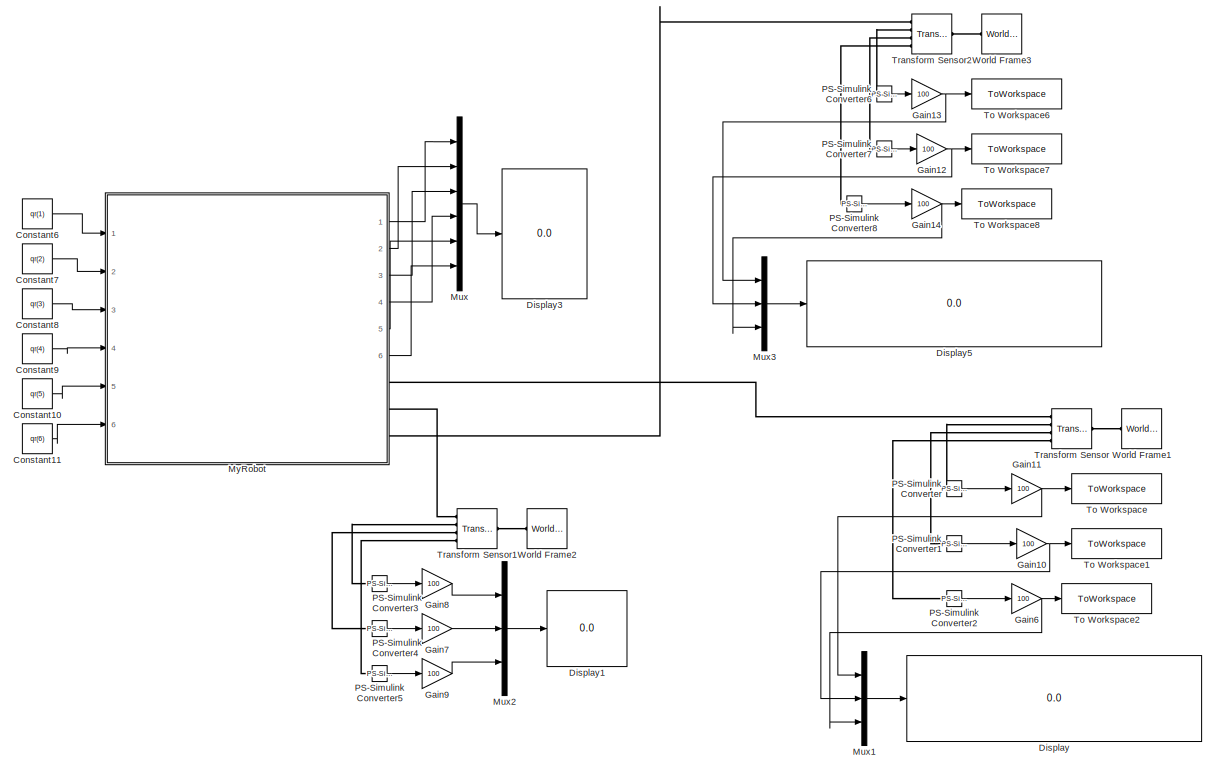
[diagram: root canvas - part 1/2, right side, full height]
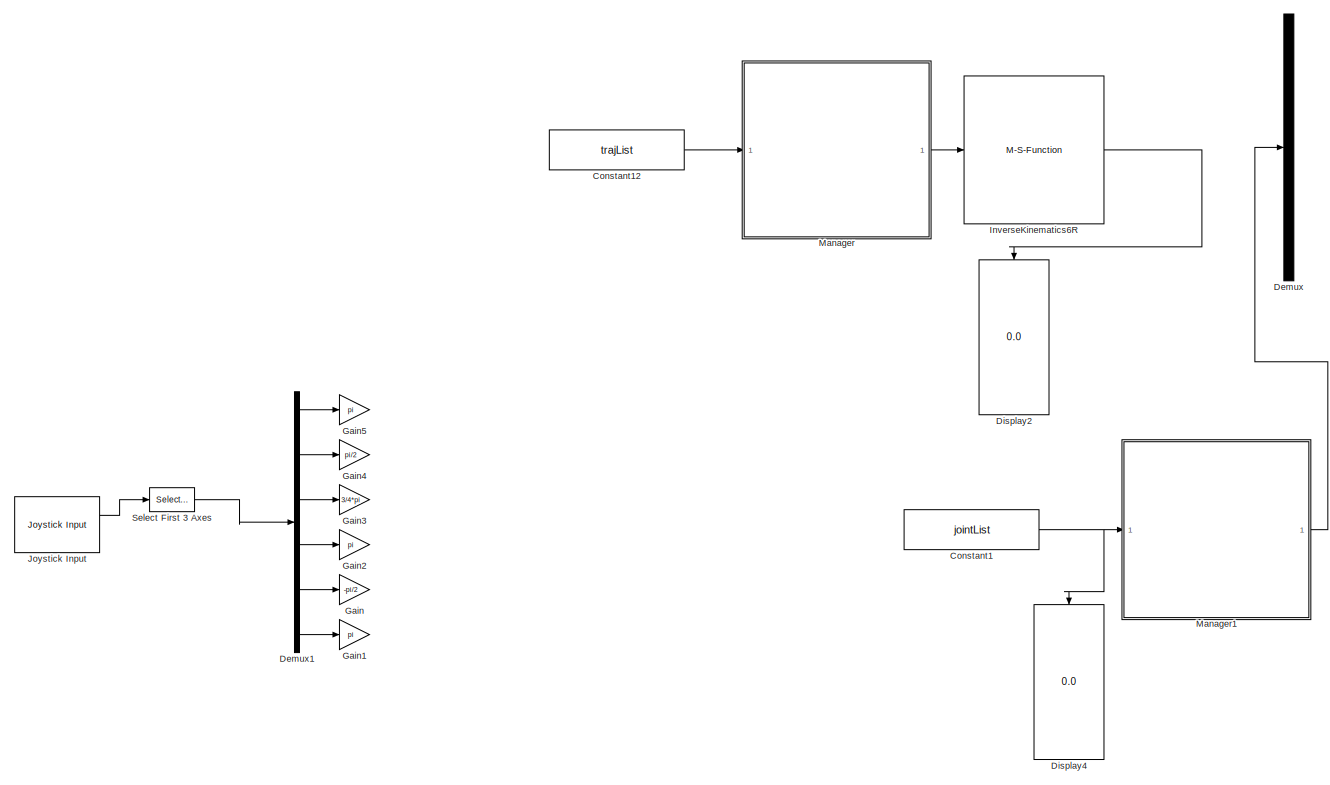
[diagram: root canvas - part 2/2, left side, full height]
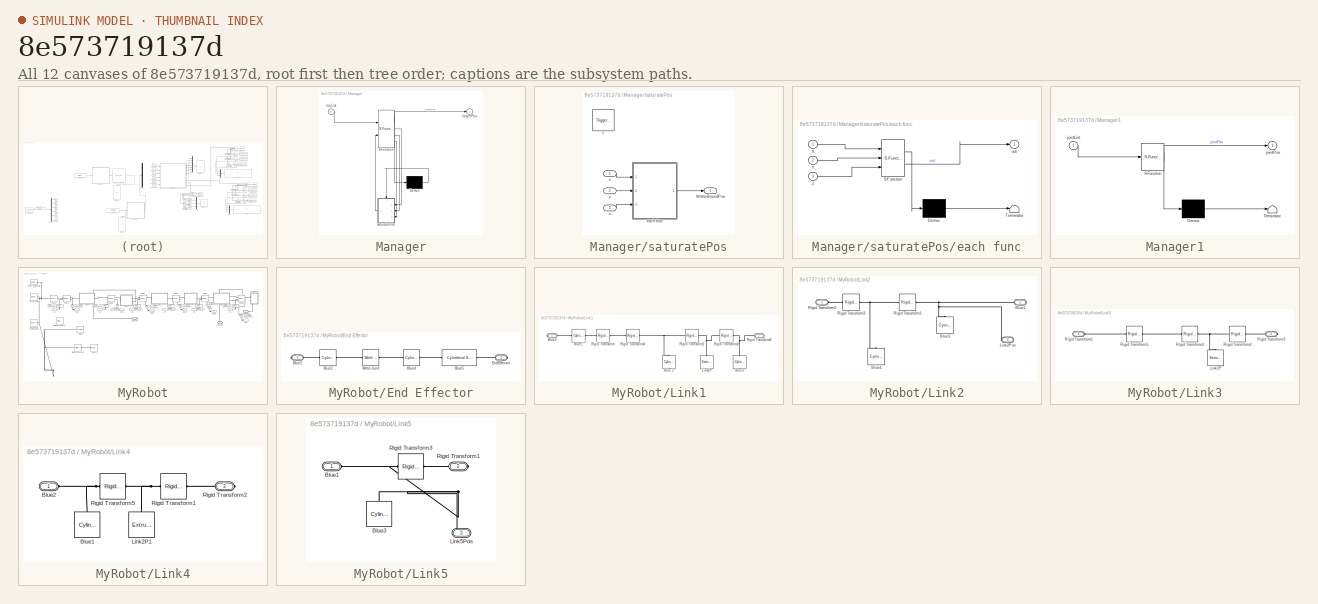
[diagram: thumbnail index - all 12 canvases of the model, root first then tree order]
MODEL slx_8e573719137d
KIND model
CONFIG AbsTol = auto
CONFIG EnableMultiTasking = on
CONFIG FixedStep = 0.1
CONFIG MaxStep = auto
CONFIG MinStep = auto
CONFIG RelTol = 1e-3
CONFIG SampleTimeConstraint = Unconstrained
CONFIG SolverName = FixedStepAuto
CONFIG StartTime = 0.0
CONFIG StopTime = 10
BLOCK [Constant] Constant1
  Commented = on
  Value = jointList
BLOCK [Constant] Constant10
  Value = qr(5)
BLOCK [Constant] Constant11
  Value = qr(6)
BLOCK [Constant] Constant12
  Commented = on
  Value = trajList
BLOCK [Constant] Constant6
  Value = qr(1)
BLOCK [Constant] Constant7
  Value = qr(2)
BLOCK [Constant] Constant8
  Value = qr(3)
BLOCK [Constant] Constant9
  Value = qr(4)
BLOCK [Demux] Demux
  Commented = on
  Outputs = 6
  Ports = [1, 6]
BLOCK [Demux] Demux1
  Commented = on
  Outputs = 6
  Ports = [1, 6]
BLOCK [Display] Display
  Decimation = 1
  Ports = [1]
BLOCK [Display] Display1
  Decimation = 1
  Ports = [1]
BLOCK [Display] Display2
  Commented = on
  Decimation = 1
  NameLocation = left
  Ports = [1]
BLOCK [Display] Display3
  Decimation = 1
  Ports = [1]
BLOCK [Display] Display4
  Commented = on
  Decimation = 1
  NameLocation = left
  Ports = [1]
BLOCK [Display] Display5
  Decimation = 1
  Ports = [1]
BLOCK [Gain] Gain
  Commented = on
  Gain = -pi/2
BLOCK [Gain] Gain1
  Commented = on
  Gain = pi
BLOCK [Gain] Gain10
  Gain = 100
BLOCK [Gain] Gain11
  Gain = 100
BLOCK [Gain] Gain12
  Gain = 100
BLOCK [Gain] Gain13
  Gain = 100
BLOCK [Gain] Gain14
  Gain = 100
BLOCK [Gain] Gain2
  Commented = on
  Gain = pi
BLOCK [Gain] Gain3
  Commented = on
  Gain = 3/4*pi
BLOCK [Gain] Gain4
  Commented = on
  Gain = pi/2
BLOCK [Gain] Gain5
  Commented = on
  Gain = pi
BLOCK [Gain] Gain6
  Gain = 100
BLOCK [Gain] Gain7
  Gain = 100
BLOCK [Gain] Gain8
  Gain = 100
BLOCK [Gain] Gain9
  Gain = 100
BLOCK [M-S-Function] InverseKinematics6R
  Commented = on
  FunctionName = inverse_kinematics_6R
  Ports = [1, 1]
BLOCK [Reference] Joystick Input  REF=vrlib/Joystick Input
  Commented = on
  Ports = [0, 2]
  SourceBlock = vrlib/Joystick Input
  SourceProductBaseCode = SL
  SourceType = Joystick Input
BLOCK [SubSystem] Manager
  Commented = on
  ErrorFcn = Stateflow.Translate.translate
  PermitHierarchicalResolution = ExplicitOnly
  Ports = [1, 1]
  RequestExecContextInheritance = off
  SFBlockType = Chart
  TreatAsAtomicUnit = on
BLOCK [Demux] Manager/ Demux 
  Outputs = 1
  Ports = [1, 1]
BLOCK [S-Function] Manager/ SFunction 
  EnableBusSupport = on
  FunctionName = sf_sfun
  PortCounts = [2 5]
  Ports = [2, 5]
  SFcnIsStateOwnerBlock = off
  SFunctionDeploymentMode = off
  Tag = Stateflow S-Function 3
BLOCK [SubSystem] Manager/saturatePos
  Ports = [3, 1, 0, 1]
  PreDeleteFcn = Stateflow.SLINSF.SimulinkMan.removePreDeleteFcn
  RequestExecContextInheritance = off
  UndoDeleteFcn = Stateflow.SLINSF.SimulinkMan.restorePreDeleteFcn
BLOCK [Outport] Manager/saturatePos/WithinBoundPos
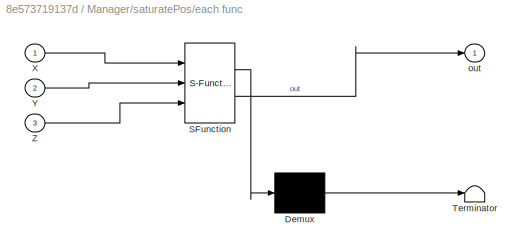
BLOCK [SubSystem] Manager/saturatePos/each func
  ErrorFcn = Stateflow.Translate.translate
  PermitHierarchicalResolution = ExplicitOnly
  Ports = [3, 1]
  RequestExecContextInheritance = off
  SFBlockType = MATLAB Function
  TreatAsAtomicUnit = on
BLOCK [Demux] Manager/saturatePos/each func/ Demux 
  Outputs = 1
  Ports = [1, 1]
BLOCK [S-Function] Manager/saturatePos/each func/ SFunction 
  EnableBusSupport = off
  FunctionName = sf_sfun
  PortCounts = [3 2]
  Ports = [3, 2]
  SFcnIsStateOwnerBlock = off
  SFunctionDeploymentMode = off
  Tag = Stateflow S-Function 4
BLOCK [Terminator] Manager/saturatePos/each func/ Terminator 
BLOCK [Inport] Manager/saturatePos/each func/X
BLOCK [Inport] Manager/saturatePos/each func/Y
  Port = 2
BLOCK [Inport] Manager/saturatePos/each func/Z
  Port = 3
BLOCK [Outport] Manager/saturatePos/each func/out
BLOCK [TriggerPort] Manager/saturatePos/f
  CopyFcn = Stateflow.SLINSF.SimulinkMan.removeBlockPreDeleteFcn
  Ports = []
  PreDeleteFcn = Stateflow.SLINSF.SimulinkMan.unsafePredeleteFcn
  StatesWhenEnabling = held
  TriggerType = function-call
  VariantControl = (inherit)
BLOCK [Inport] Manager/saturatePos/x
  OutDataTypeStr = double
  PortDimensions = 1
  SignalType = real
  VarSizeSig = No
BLOCK [Inport] Manager/saturatePos/y
  OutDataTypeStr = double
  Port = 2
  PortDimensions = 1
  SignalType = real
  VarSizeSig = No
BLOCK [Inport] Manager/saturatePos/z
  OutDataTypeStr = double
  Port = 3
  PortDimensions = 1
  SignalType = real
  VarSizeSig = No
BLOCK [Outport] Manager/targetPos
BLOCK [Inport] Manager/trajList
BLOCK [SubSystem] Manager1
  Commented = on
  ErrorFcn = Stateflow.Translate.translate
  PermitHierarchicalResolution = ExplicitOnly
  Ports = [1, 1]
  RequestExecContextInheritance = off
  SFBlockType = Chart
  TreatAsAtomicUnit = on
BLOCK [Demux] Manager1/ Demux 
  Outputs = 1
  Ports = [1, 1]
BLOCK [S-Function] Manager1/ SFunction 
  EnableBusSupport = on
  FunctionName = sf_sfun
  PortCounts = [1 2]
  Ports = [1, 2]
  SFcnIsStateOwnerBlock = off
  SFunctionDeploymentMode = off
  Tag = Stateflow S-Function 1
BLOCK [Terminator] Manager1/ Terminator 
BLOCK [Inport] Manager1/jointList
BLOCK [Outport] Manager1/jointPos
BLOCK [Mux] Mux
  DisplayOption = bar
  Inputs = 6
  Ports = [6, 1]
BLOCK [Mux] Mux1
  DisplayOption = bar
  Inputs = 3
  Ports = [3, 1]
BLOCK [Mux] Mux2
  DisplayOption = bar
  Inputs = 3
  Ports = [3, 1]
BLOCK [Mux] Mux3
  DisplayOption = bar
  Inputs = 3
  Ports = [3, 1]
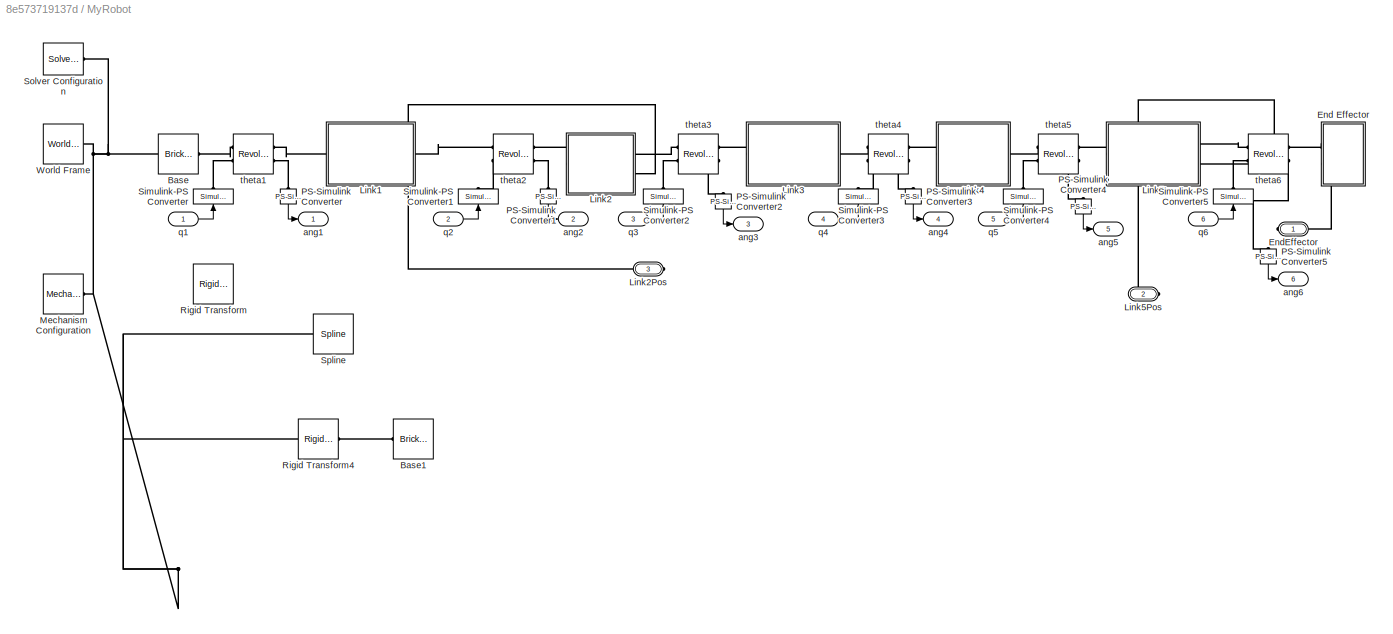
BLOCK [SubSystem] MyRobot
  Ports = [6, 6, 0, 0, 0, 0, 3]
  RequestExecContextInheritance = off
BLOCK [Reference] MyRobot/Base  REF=sm_lib/Body Elements/Brick Solid
  NameLocation = left
  Ports = [0, 0, 0, 0, 0, 1, 1]
  SourceBlock = sm_lib/Body Elements/Brick Solid
  SourceProductBaseCode = MS
  SourceType = Brick Solid
BLOCK [Reference] MyRobot/Base1  REF=sm_lib/Body Elements/Brick Solid
  NameLocation = left
  Ports = [0, 0, 0, 0, 0, 1]
  SourceBlock = sm_lib/Body Elements/Brick Solid
  SourceProductBaseCode = MS
  SourceType = Brick Solid
BLOCK [SubSystem] MyRobot/End Effector
  NameLocation = top
  Ports = [0, 0, 0, 0, 0, 0, 2]
  RequestExecContextInheritance = off
BLOCK [PMIOPort] MyRobot/End Effector/Blue1
  Side = Right
BLOCK [Reference] MyRobot/End Effector/Blue2  REF=sm_lib/Body Elements/Cylindrical Solid
  NameLocation = top
  Ports = [0, 0, 0, 0, 0, 1, 1]
  SourceBlock = sm_lib/Body Elements/Cylindrical Solid
  SourceProductBaseCode = MS
  SourceType = Cylindrical Solid
BLOCK [Reference] MyRobot/End Effector/Blue4  REF=sm_lib/Body Elements/Cylindrical Solid
  Ports = [0, 0, 0, 0, 0, 1, 1]
  SourceBlock = sm_lib/Body Elements/Cylindrical Solid
  SourceProductBaseCode = MS
  SourceType = Cylindrical Solid
BLOCK [Reference] MyRobot/End Effector/Blue5  REF=sm_lib/Body Elements/Cylindrical Solid
  Ports = [0, 0, 0, 0, 0, 1, 1]
  SourceBlock = sm_lib/Body Elements/Cylindrical Solid
  SourceProductBaseCode = MS
  SourceType = Cylindrical Solid
BLOCK [PMIOPort] MyRobot/End Effector/EndEffector
  NameLocation = top
  Port = 2
  Side = Right
BLOCK [Reference] MyRobot/End Effector/Weld Joint  REF=sm_lib/Joints/Weld Joint
  Ports = [0, 0, 0, 0, 0, 1, 1]
  SourceBlock = sm_lib/Joints/Weld Joint
  SourceProductBaseCode = MS
  SourceType = Weld Joint
BLOCK [PMIOPort] MyRobot/EndEffector
  Side = Right
BLOCK [SubSystem] MyRobot/Link1
  NameLocation = top
  Ports = [0, 0, 0, 0, 0, 1, 1]
  RequestExecContextInheritance = off
BLOCK [Reference] MyRobot/Link1/Blue 2  REF=sm_lib/Body Elements/Cylindrical Solid
  NameLocation = right
  Ports = [0, 0, 0, 0, 0, 0, 1]
  SourceBlock = sm_lib/Body Elements/Cylindrical Solid
  SourceProductBaseCode = MS
  SourceType = Cylindrical Solid
BLOCK [Reference] MyRobot/Link1/Blue1  REF=sm_lib/Body Elements/Cylindrical Solid
  NameLocation = top
  Ports = [0, 0, 0, 0, 0, 1, 1]
  SourceBlock = sm_lib/Body Elements/Cylindrical Solid
  SourceProductBaseCode = MS
  SourceType = Cylindrical Solid
BLOCK [PMIOPort] MyRobot/Link1/Blue2
  Side = Right
BLOCK [Reference] MyRobot/Link1/Blue3  REF=sm_lib/Body Elements/Cylindrical Solid
  NameLocation = right
  Ports = [0, 0, 0, 0, 0, 0, 1]
  SourceBlock = sm_lib/Body Elements/Cylindrical Solid
  SourceProductBaseCode = MS
  SourceType = Cylindrical Solid
BLOCK [Reference] MyRobot/Link1/Link2P  REF=sm_lib/Body Elements/Extruded Solid
  NameLocation = right
  Ports = [0, 0, 0, 0, 0, 0, 1]
  SourceBlock = sm_lib/Body Elements/Extruded Solid
  SourceProductBaseCode = MS
  SourceType = Extruded Solid
BLOCK [Reference] MyRobot/Link1/Rigid Transform  REF=sm_lib/Frames and
Transforms/Rigid
Transform
  Ports = [0, 0, 0, 0, 0, 1, 1]
  SourceBlock = sm_lib/Frames and\nTransforms/Rigid\nTransform
  SourceProductBaseCode = MS
  SourceType = Rigid\nTransform
BLOCK [Reference] MyRobot/Link1/Rigid Transform1  REF=sm_lib/Frames and
Transforms/Rigid
Transform
  Ports = [0, 0, 0, 0, 0, 1, 1]
  SourceBlock = sm_lib/Frames and\nTransforms/Rigid\nTransform
  SourceProductBaseCode = MS
  SourceType = Rigid\nTransform
BLOCK [Reference] MyRobot/Link1/Rigid Transform2  REF=sm_lib/Frames and
Transforms/Rigid
Transform
  Ports = [0, 0, 0, 0, 0, 1, 1]
  SourceBlock = sm_lib/Frames and\nTransforms/Rigid\nTransform
  SourceProductBaseCode = MS
  SourceType = Rigid\nTransform
BLOCK [PMIOPort] MyRobot/Link1/Rigid Transform3
  NameLocation = top
  Port = 2
  Side = Left
BLOCK [Reference] MyRobot/Link1/Rigid Transform4  REF=sm_lib/Frames and
Transforms/Rigid
Transform
  Ports = [0, 0, 0, 0, 0, 1, 1]
  SourceBlock = sm_lib/Frames and\nTransforms/Rigid\nTransform
  SourceProductBaseCode = MS
  SourceType = Rigid\nTransform
BLOCK [SubSystem] MyRobot/Link2
  Ports = [0, 0, 0, 0, 0, 1, 2]
  RequestExecContextInheritance = off
BLOCK [PMIOPort] MyRobot/Link2/Blue1
  Port = 2
  Side = Right
BLOCK [Reference] MyRobot/Link2/Blue3  REF=sm_lib/Body Elements/Cylindrical Solid
  NameLocation = right
  Ports = [0, 0, 0, 0, 0, 0, 1]
  SourceBlock = sm_lib/Body Elements/Cylindrical Solid
  SourceProductBaseCode = MS
  SourceType = Cylindrical Solid
BLOCK [Reference] MyRobot/Link2/Blue4  REF=sm_lib/Body Elements/Cylindrical Solid
  NameLocation = right
  Ports = [0, 0, 0, 0, 0, 0, 1]
  SourceBlock = sm_lib/Body Elements/Cylindrical Solid
  SourceProductBaseCode = MS
  SourceType = Cylindrical Solid
BLOCK [PMIOPort] MyRobot/Link2/Link2Pos
  NameLocation = top
  Port = 3
  Side = Right
BLOCK [Reference] MyRobot/Link2/Rigid Transform1  REF=sm_lib/Frames and
Transforms/Rigid
Transform
  Ports = [0, 0, 0, 0, 0, 1, 1]
  SourceBlock = sm_lib/Frames and\nTransforms/Rigid\nTransform
  SourceProductBaseCode = MS
  SourceType = Rigid\nTransform
BLOCK [PMIOPort] MyRobot/Link2/Rigid Transform2
  Side = Left
BLOCK [Reference] MyRobot/Link2/Rigid Transform3  REF=sm_lib/Frames and
Transforms/Rigid
Transform
  Ports = [0, 0, 0, 0, 0, 1, 1]
  SourceBlock = sm_lib/Frames and\nTransforms/Rigid\nTransform
  SourceProductBaseCode = MS
  SourceType = Rigid\nTransform
BLOCK [PMIOPort] MyRobot/Link2Pos
  NameLocation = top
  Port = 3
  Side = Right
BLOCK [SubSystem] MyRobot/Link3
  Ports = [0, 0, 0, 0, 0, 1, 1]
  RequestExecContextInheritance = off
BLOCK [Reference] MyRobot/Link3/Link2P  REF=sm_lib/Body Elements/Extruded Solid
  NameLocation = right
  Ports = [0, 0, 0, 0, 0, 0, 1]
  SourceBlock = sm_lib/Body Elements/Extruded Solid
  SourceProductBaseCode = MS
  SourceType = Extruded Solid
BLOCK [PMIOPort] MyRobot/Link3/Rigid Transform1
  Side = Left
BLOCK [Reference] MyRobot/Link3/Rigid Transform2  REF=sm_lib/Frames and
Transforms/Rigid
Transform
  Ports = [0, 0, 0, 0, 0, 1, 1]
  SourceBlock = sm_lib/Frames and\nTransforms/Rigid\nTransform
  SourceProductBaseCode = MS
  SourceType = Rigid\nTransform
BLOCK [PMIOPort] MyRobot/Link3/Rigid Transform3
  Port = 2
  Side = Right
BLOCK [Reference] MyRobot/Link3/Rigid Transform4  REF=sm_lib/Frames and
Transforms/Rigid
Transform
  Ports = [0, 0, 0, 0, 0, 1, 1]
  SourceBlock = sm_lib/Frames and\nTransforms/Rigid\nTransform
  SourceProductBaseCode = MS
  SourceType = Rigid\nTransform
BLOCK [Reference] MyRobot/Link3/Rigid Transform5  REF=sm_lib/Frames and
Transforms/Rigid
Transform
  Ports = [0, 0, 0, 0, 0, 1, 1]
  SourceBlock = sm_lib/Frames and\nTransforms/Rigid\nTransform
  SourceProductBaseCode = MS
  SourceType = Rigid\nTransform
BLOCK [SubSystem] MyRobot/Link4
  Ports = [0, 0, 0, 0, 0, 1, 1]
  RequestExecContextInheritance = off
BLOCK [Reference] MyRobot/Link4/Blue1  REF=sm_lib/Body Elements/Cylindrical Solid
  NameLocation = right
  Ports = [0, 0, 0, 0, 0, 0, 1]
  SourceBlock = sm_lib/Body Elements/Cylindrical Solid
  SourceProductBaseCode = MS
  SourceType = Cylindrical Solid
BLOCK [PMIOPort] MyRobot/Link4/Blue2
  Side = Left
BLOCK [Reference] MyRobot/Link4/Link2P1  REF=sm_lib/Body Elements/Extruded Solid
  NameLocation = right
  Ports = [0, 0, 0, 0, 0, 0, 1]
  SourceBlock = sm_lib/Body Elements/Extruded Solid
  SourceProductBaseCode = MS
  SourceType = Extruded Solid
BLOCK [Reference] MyRobot/Link4/Rigid Transform1  REF=sm_lib/Frames and
Transforms/Rigid
Transform
  Ports = [0, 0, 0, 0, 0, 1, 1]
  SourceBlock = sm_lib/Frames and\nTransforms/Rigid\nTransform
  SourceProductBaseCode = MS
  SourceType = Rigid\nTransform
BLOCK [PMIOPort] MyRobot/Link4/Rigid Transform2
  Port = 2
  Side = Right
BLOCK [Reference] MyRobot/Link4/Rigid Transform5  REF=sm_lib/Frames and
Transforms/Rigid
Transform
  Ports = [0, 0, 0, 0, 0, 1, 1]
  SourceBlock = sm_lib/Frames and\nTransforms/Rigid\nTransform
  SourceProductBaseCode = MS
  SourceType = Rigid\nTransform
BLOCK [SubSystem] MyRobot/Link5
  Ports = [0, 0, 0, 0, 0, 1, 2]
  RequestExecContextInheritance = off
BLOCK [PMIOPort] MyRobot/Link5/Blue1
  Side = Left
BLOCK [Reference] MyRobot/Link5/Blue3  REF=sm_lib/Body Elements/Cylindrical Solid
  NameLocation = right
  Ports = [0, 0, 0, 0, 0, 0, 1]
  SourceBlock = sm_lib/Body Elements/Cylindrical Solid
  SourceProductBaseCode = MS
  SourceType = Cylindrical Solid
BLOCK [PMIOPort] MyRobot/Link5/Link5Pos
  NameLocation = top
  Port = 3
  Side = Right
BLOCK [PMIOPort] MyRobot/Link5/Rigid Transform1
  Port = 2
  Side = Right
BLOCK [Reference] MyRobot/Link5/Rigid Transform3  REF=sm_lib/Frames and
Transforms/Rigid
Transform
  Ports = [0, 0, 0, 0, 0, 1, 1]
  SourceBlock = sm_lib/Frames and\nTransforms/Rigid\nTransform
  SourceProductBaseCode = MS
  SourceType = Rigid\nTransform
BLOCK [PMIOPort] MyRobot/Link5Pos
  NameLocation = top
  Port = 2
  Side = Right
BLOCK [Reference] MyRobot/Mechanism Configuration  REF=sm_lib/Utilities/Mechanism
Configuration
  Ports = [0, 0, 0, 0, 0, 0, 1]
  SourceBlock = sm_lib/Utilities/Mechanism\nConfiguration
  SourceProductBaseCode = MS
  SourceType = Mechanism\nConfiguration
BLOCK [Reference] MyRobot/PS-Simulink Converter  REF=nesl_utility/PS-Simulink
Converter
  NameLocation = left
  Ports = [0, 1, 0, 0, 0, 1]
  SourceBlock = nesl_utility/PS-Simulink\nConverter
  SourceProductBaseCode = PW,SS
  SourceType = PS-Simulink\nConverter
BLOCK [Reference] MyRobot/PS-Simulink Converter1  REF=nesl_utility/PS-Simulink
Converter
  NameLocation = left
  Ports = [0, 1, 0, 0, 0, 1]
  SourceBlock = nesl_utility/PS-Simulink\nConverter
  SourceProductBaseCode = PW,SS
  SourceType = PS-Simulink\nConverter
BLOCK [Reference] MyRobot/PS-Simulink Converter2  REF=nesl_utility/PS-Simulink
Converter
  NameLocation = left
  Ports = [0, 1, 0, 0, 0, 1]
  SourceBlock = nesl_utility/PS-Simulink\nConverter
  SourceProductBaseCode = PW,SS
  SourceType = PS-Simulink\nConverter
BLOCK [Reference] MyRobot/PS-Simulink Converter3  REF=nesl_utility/PS-Simulink
Converter
  NameLocation = left
  Ports = [0, 1, 0, 0, 0, 1]
  SourceBlock = nesl_utility/PS-Simulink\nConverter
  SourceProductBaseCode = PW,SS
  SourceType = PS-Simulink\nConverter
BLOCK [Reference] MyRobot/PS-Simulink Converter4  REF=nesl_utility/PS-Simulink
Converter
  NameLocation = left
  Ports = [0, 1, 0, 0, 0, 1]
  SourceBlock = nesl_utility/PS-Simulink\nConverter
  SourceProductBaseCode = PW,SS
  SourceType = PS-Simulink\nConverter
BLOCK [Reference] MyRobot/PS-Simulink Converter5  REF=nesl_utility/PS-Simulink
Converter
  NameLocation = left
  Ports = [0, 1, 0, 0, 0, 1]
  SourceBlock = nesl_utility/PS-Simulink\nConverter
  SourceProductBaseCode = PW,SS
  SourceType = PS-Simulink\nConverter
BLOCK [Reference] MyRobot/Rigid Transform  REF=sm_lib/Frames and
Transforms/Rigid
Transform
  Commented = on
  Ports = [0, 0, 0, 0, 0, 1, 1]
  SourceBlock = sm_lib/Frames and\nTransforms/Rigid\nTransform
  SourceProductBaseCode = MS
  SourceType = Rigid\nTransform
BLOCK [Reference] MyRobot/Rigid Transform4  REF=sm_lib/Frames and
Transforms/Rigid
Transform
  Ports = [0, 0, 0, 0, 0, 1, 1]
  SourceBlock = sm_lib/Frames and\nTransforms/Rigid\nTransform
  SourceProductBaseCode = MS
  SourceType = Rigid\nTransform
BLOCK [Reference] MyRobot/Simulink-PS Converter  REF=nesl_utility/Simulink-PS
Converter
  NameLocation = right
  Ports = [1, 0, 0, 0, 0, 0, 1]
  SourceBlock = nesl_utility/Simulink-PS\nConverter
  SourceProductBaseCode = PW,SS
  SourceType = Simulink-PS\nConverter
BLOCK [Reference] MyRobot/Simulink-PS Converter1  REF=nesl_utility/Simulink-PS
Converter
  NameLocation = right
  Ports = [1, 0, 0, 0, 0, 0, 1]
  SourceBlock = nesl_utility/Simulink-PS\nConverter
  SourceProductBaseCode = PW,SS
  SourceType = Simulink-PS\nConverter
BLOCK [Reference] MyRobot/Simulink-PS Converter2  REF=nesl_utility/Simulink-PS
Converter
  NameLocation = right
  Ports = [1, 0, 0, 0, 0, 0, 1]
  SourceBlock = nesl_utility/Simulink-PS\nConverter
  SourceProductBaseCode = PW,SS
  SourceType = Simulink-PS\nConverter
BLOCK [Reference] MyRobot/Simulink-PS Converter3  REF=nesl_utility/Simulink-PS
Converter
  NameLocation = right
  Ports = [1, 0, 0, 0, 0, 0, 1]
  SourceBlock = nesl_utility/Simulink-PS\nConverter
  SourceProductBaseCode = PW,SS
  SourceType = Simulink-PS\nConverter
BLOCK [Reference] MyRobot/Simulink-PS Converter4  REF=nesl_utility/Simulink-PS
Converter
  NameLocation = right
  Ports = [1, 0, 0, 0, 0, 0, 1]
  SourceBlock = nesl_utility/Simulink-PS\nConverter
  SourceProductBaseCode = PW,SS
  SourceType = Simulink-PS\nConverter
BLOCK [Reference] MyRobot/Simulink-PS Converter5  REF=nesl_utility/Simulink-PS
Converter
  NameLocation = right
  Ports = [1, 0, 0, 0, 0, 0, 1]
  SourceBlock = nesl_utility/Simulink-PS\nConverter
  SourceProductBaseCode = PW,SS
  SourceType = Simulink-PS\nConverter
BLOCK [Reference] MyRobot/Solver Configuration  REF=nesl_utility/Solver
Configuration
  Ports = [0, 0, 0, 0, 0, 0, 1]
  SourceBlock = nesl_utility/Solver\nConfiguration
  SourceProductBaseCode = PW,SS
  SourceType = Solver\nConfiguration
BLOCK [Reference] MyRobot/Spline  REF=sm_lib/Curves and Surfaces/Spline
  Ports = [0, 0, 0, 0, 0, 1, 1]
  SourceBlock = sm_lib/Curves and Surfaces/Spline
  SourceProductBaseCode = MS
  SourceType = Spline
BLOCK [Reference] MyRobot/World Frame  REF=sm_lib/Frames and
Transforms/World Frame
  Ports = [0, 0, 0, 0, 0, 0, 1]
  SourceBlock = sm_lib/Frames and\nTransforms/World Frame
  SourceProductBaseCode = MS
  SourceType = World Frame
BLOCK [Outport] MyRobot/ang1
BLOCK [Outport] MyRobot/ang2
  Port = 2
BLOCK [Outport] MyRobot/ang3
  Port = 3
BLOCK [Outport] MyRobot/ang4
  Port = 4
BLOCK [Outport] MyRobot/ang5
  Port = 5
BLOCK [Outport] MyRobot/ang6
  Port = 6
BLOCK [Inport] MyRobot/q1
BLOCK [Inport] MyRobot/q2
  Port = 2
BLOCK [Inport] MyRobot/q3
  Port = 3
BLOCK [Inport] MyRobot/q4
  Port = 4
BLOCK [Inport] MyRobot/q5
  Port = 5
BLOCK [Inport] MyRobot/q6
  Port = 6
BLOCK [Reference] MyRobot/theta1  REF=sm_lib/Joints/Revolute Joint
  Ports = [0, 0, 0, 0, 0, 2, 2]
  SourceBlock = sm_lib/Joints/Revolute Joint
  SourceProductBaseCode = MS
  SourceType = Revolute Joint
BLOCK [Reference] MyRobot/theta2  REF=sm_lib/Joints/Revolute Joint
  Ports = [0, 0, 0, 0, 0, 2, 2]
  SourceBlock = sm_lib/Joints/Revolute Joint
  SourceProductBaseCode = MS
  SourceType = Revolute Joint
BLOCK [Reference] MyRobot/theta3  REF=sm_lib/Joints/Revolute Joint
  Ports = [0, 0, 0, 0, 0, 2, 2]
  SourceBlock = sm_lib/Joints/Revolute Joint
  SourceProductBaseCode = MS
  SourceType = Revolute Joint
BLOCK [Reference] MyRobot/theta4  REF=sm_lib/Joints/Revolute Joint
  Ports = [0, 0, 0, 0, 0, 2, 2]
  SourceBlock = sm_lib/Joints/Revolute Joint
  SourceProductBaseCode = MS
  SourceType = Revolute Joint
BLOCK [Reference] MyRobot/theta5  REF=sm_lib/Joints/Revolute Joint
  Ports = [0, 0, 0, 0, 0, 2, 2]
  SourceBlock = sm_lib/Joints/Revolute Joint
  SourceProductBaseCode = MS
  SourceType = Revolute Joint
BLOCK [Reference] MyRobot/theta6  REF=sm_lib/Joints/Revolute Joint
  Ports = [0, 0, 0, 0, 0, 2, 2]
  SourceBlock = sm_lib/Joints/Revolute Joint
  SourceProductBaseCode = MS
  SourceType = Revolute Joint
BLOCK [Reference] PS-Simulink Converter  REF=nesl_utility/PS-Simulink
Converter
  Ports = [0, 1, 0, 0, 0, 1]
  SourceBlock = nesl_utility/PS-Simulink\nConverter
  SourceProductBaseCode = PW,SS
  SourceType = PS-Simulink\nConverter
BLOCK [Reference] PS-Simulink Converter1  REF=nesl_utility/PS-Simulink
Converter
  Ports = [0, 1, 0, 0, 0, 1]
  SourceBlock = nesl_utility/PS-Simulink\nConverter
  SourceProductBaseCode = PW,SS
  SourceType = PS-Simulink\nConverter
BLOCK [Reference] PS-Simulink Converter2  REF=nesl_utility/PS-Simulink
Converter
  Ports = [0, 1, 0, 0, 0, 1]
  SourceBlock = nesl_utility/PS-Simulink\nConverter
  SourceProductBaseCode = PW,SS
  SourceType = PS-Simulink\nConverter
BLOCK [Reference] PS-Simulink Converter3  REF=nesl_utility/PS-Simulink
Converter
  Ports = [0, 1, 0, 0, 0, 1]
  SourceBlock = nesl_utility/PS-Simulink\nConverter
  SourceProductBaseCode = PW,SS
  SourceType = PS-Simulink\nConverter
BLOCK [Reference] PS-Simulink Converter4  REF=nesl_utility/PS-Simulink
Converter
  Ports = [0, 1, 0, 0, 0, 1]
  SourceBlock = nesl_utility/PS-Simulink\nConverter
  SourceProductBaseCode = PW,SS
  SourceType = PS-Simulink\nConverter
BLOCK [Reference] PS-Simulink Converter5  REF=nesl_utility/PS-Simulink
Converter
  Ports = [0, 1, 0, 0, 0, 1]
  SourceBlock = nesl_utility/PS-Simulink\nConverter
  SourceProductBaseCode = PW,SS
  SourceType = PS-Simulink\nConverter
BLOCK [Reference] PS-Simulink Converter6  REF=nesl_utility/PS-Simulink
Converter
  Ports = [0, 1, 0, 0, 0, 1]
  SourceBlock = nesl_utility/PS-Simulink\nConverter
  SourceProductBaseCode = PW,SS
  SourceType = PS-Simulink\nConverter
BLOCK [Reference] PS-Simulink Converter7  REF=nesl_utility/PS-Simulink
Converter
  Ports = [0, 1, 0, 0, 0, 1]
  SourceBlock = nesl_utility/PS-Simulink\nConverter
  SourceProductBaseCode = PW,SS
  SourceType = PS-Simulink\nConverter
BLOCK [Reference] PS-Simulink Converter8  REF=nesl_utility/PS-Simulink
Converter
  Ports = [0, 1, 0, 0, 0, 1]
  SourceBlock = nesl_utility/PS-Simulink\nConverter
  SourceProductBaseCode = PW,SS
  SourceType = PS-Simulink\nConverter
BLOCK [Selector] Select First 3 Axes
  AttributesFormatString = (Joystick - dependent)
  Commented = on
  IndexOptions = Index vector (dialog)
  Indices = [1 2 3 4 5 6]
  InputPortWidth = 6
  OutputSizes = 1
  Ports = [1, 1]
BLOCK [ToWorkspace] To Workspace
  FixptAsFi = on
  MaxDataPoints = inf
  Ports = [1]
  SampleTime = -1
  SaveFormat = Timeseries
  VariableName = x_point
BLOCK [ToWorkspace] To Workspace1
  FixptAsFi = on
  MaxDataPoints = inf
  Ports = [1]
  SampleTime = -1
  SaveFormat = Timeseries
  VariableName = y_point
BLOCK [ToWorkspace] To Workspace2
  FixptAsFi = on
  MaxDataPoints = inf
  Ports = [1]
  SampleTime = -1
  SaveFormat = Timeseries
  VariableName = z_point
BLOCK [ToWorkspace] To Workspace6
  FixptAsFi = on
  MaxDataPoints = inf
  Ports = [1]
  SampleTime = -1
  SaveFormat = Timeseries
  VariableName = x_point2
BLOCK [ToWorkspace] To Workspace7
  FixptAsFi = on
  MaxDataPoints = inf
  Ports = [1]
  SampleTime = -1
  SaveFormat = Timeseries
  VariableName = y_point2
BLOCK [ToWorkspace] To Workspace8
  FixptAsFi = on
  MaxDataPoints = inf
  Ports = [1]
  SampleTime = -1
  SaveFormat = Timeseries
  VariableName = z_point2
BLOCK [Reference] Transform Sensor  REF=sm_lib/Frames and
Transforms/Transform
Sensor
  NameLocation = top
  Ports = [0, 0, 0, 0, 0, 1, 4]
  SourceBlock = sm_lib/Frames and\nTransforms/Transform\nSensor
  SourceProductBaseCode = MS
  SourceType = Transform\nSensor
BLOCK [Reference] Transform Sensor1  REF=sm_lib/Frames and
Transforms/Transform
Sensor
  NameLocation = top
  Ports = [0, 0, 0, 0, 0, 1, 4]
  SourceBlock = sm_lib/Frames and\nTransforms/Transform\nSensor
  SourceProductBaseCode = MS
  SourceType = Transform\nSensor
BLOCK [Reference] Transform Sensor2  REF=sm_lib/Frames and
Transforms/Transform
Sensor
  NameLocation = top
  Ports = [0, 0, 0, 0, 0, 1, 4]
  SourceBlock = sm_lib/Frames and\nTransforms/Transform\nSensor
  SourceProductBaseCode = MS
  SourceType = Transform\nSensor
BLOCK [Reference] World Frame1  REF=sm_lib/Frames and
Transforms/World Frame
  NameLocation = top
  Ports = [0, 0, 0, 0, 0, 0, 1]
  SourceBlock = sm_lib/Frames and\nTransforms/World Frame
  SourceProductBaseCode = MS
  SourceType = World Frame
BLOCK [Reference] World Frame2  REF=sm_lib/Frames and
Transforms/World Frame
  NameLocation = top
  Ports = [0, 0, 0, 0, 0, 0, 1]
  SourceBlock = sm_lib/Frames and\nTransforms/World Frame
  SourceProductBaseCode = MS
  SourceType = World Frame
BLOCK [Reference] World Frame3  REF=sm_lib/Frames and
Transforms/World Frame
  NameLocation = top
  Ports = [0, 0, 0, 0, 0, 0, 1]
  SourceBlock = sm_lib/Frames and\nTransforms/World Frame
  SourceProductBaseCode = MS
  SourceType = World Frame
LINE Constant10:1 -> MyRobot:5
LINE Constant11:1 -> MyRobot:6
LINE Constant12:1 -> Manager:1
NET Constant1:1 -> Display4:1, Manager1:1
LINE Constant6:1 -> MyRobot:1
LINE Constant7:1 -> MyRobot:2
LINE Constant8:1 -> MyRobot:3
LINE Constant9:1 -> MyRobot:4
LINE Demux1:1 -> Gain5:1
LINE Demux1:2 -> Gain4:1
LINE Demux1:3 -> Gain3:1
LINE Demux1:4 -> Gain2:1
LINE Demux1:5 -> Gain:1
LINE Demux1:6 -> Gain1:1
NET Gain10:1 -> Mux1:2, To Workspace1:1
NET Gain11:1 -> Mux1:1, To Workspace:1
NET Gain12:1 -> Mux3:2, To Workspace7:1
NET Gain13:1 -> Mux3:1, To Workspace6:1
NET Gain14:1 -> Mux3:3, To Workspace8:1
NET Gain6:1 -> Mux1:3, To Workspace2:1
LINE Gain7:1 -> Mux2:2
LINE Gain8:1 -> Mux2:1
LINE Gain9:1 -> Mux2:3
LINE InverseKinematics6R:1 -> Display2:1
LINE Joystick Input:1 -> Select First 3 Axes:1
LINE Manager1:1 -> Demux:1
LINE Manager:1 -> InverseKinematics6R:1
LINE Mux1:1 -> Display:1
LINE Mux2:1 -> Display1:1
LINE Mux3:1 -> Display5:1
LINE Mux:1 -> Display3:1
LINE MyRobot/PS-Simulink Converter1:1 -> MyRobot/ang2:1
LINE MyRobot/PS-Simulink Converter2:1 -> MyRobot/ang3:1
LINE MyRobot/PS-Simulink Converter3:1 -> MyRobot/ang4:1
LINE MyRobot/PS-Simulink Converter4:1 -> MyRobot/ang5:1
LINE MyRobot/PS-Simulink Converter5:1 -> MyRobot/ang6:1
LINE MyRobot/PS-Simulink Converter:1 -> MyRobot/ang1:1
LINE MyRobot/q1:1 -> MyRobot/Simulink-PS Converter:1
LINE MyRobot/q2:1 -> MyRobot/Simulink-PS Converter1:1
LINE MyRobot/q3:1 -> MyRobot/Simulink-PS Converter2:1
LINE MyRobot/q4:1 -> MyRobot/Simulink-PS Converter3:1
LINE MyRobot/q5:1 -> MyRobot/Simulink-PS Converter4:1
LINE MyRobot/q6:1 -> MyRobot/Simulink-PS Converter5:1
LINE MyRobot:1 -> Mux:1
LINE MyRobot:2 -> Mux:2
LINE MyRobot:3 -> Mux:3
LINE MyRobot:4 -> Mux:4
LINE MyRobot:5 -> Mux:5
LINE MyRobot:6 -> Mux:6
LINE PS-Simulink Converter1:1 -> Gain10:1
LINE PS-Simulink Converter2:1 -> Gain6:1
LINE PS-Simulink Converter3:1 -> Gain8:1
LINE PS-Simulink Converter4:1 -> Gain7:1
LINE PS-Simulink Converter5:1 -> Gain9:1
LINE PS-Simulink Converter6:1 -> Gain13:1
LINE PS-Simulink Converter7:1 -> Gain12:1
LINE PS-Simulink Converter8:1 -> Gain14:1
LINE PS-Simulink Converter:1 -> Gain11:1
LINE Select First 3 Axes:1 -> Demux1:1
PLINE MyRobot/Base1:LConn1 -- MyRobot/Rigid Transform4:RConn1
PNET net1: MyRobot/Base:LConn1 -- MyRobot/Mechanism Configuration:RConn1 -- MyRobot/Rigid Transform4:LConn1 -- MyRobot/Solver Configuration:RConn1 -- MyRobot/Spline:LConn1 -- MyRobot/World Frame:RConn1
PLINE MyRobot/Base:RConn1 -- MyRobot/theta1:LConn1
PLINE MyRobot/End Effector/Blue1:RConn1 -- MyRobot/End Effector/Blue2:RConn1
PLINE MyRobot/End Effector/Blue2:LConn1 -- MyRobot/End Effector/Weld Joint:LConn1
PLINE MyRobot/End Effector/Blue4:LConn1 -- MyRobot/End Effector/Weld Joint:RConn1
PLINE MyRobot/End Effector/Blue4:RConn1 -- MyRobot/End Effector/Blue5:LConn1
PLINE MyRobot/End Effector/Blue5:RConn1 -- MyRobot/End Effector/EndEffector:RConn1
PLINE MyRobot/End Effector:RConn1 -- MyRobot/theta6:RConn1
PLINE MyRobot/End Effector:RConn2 -- MyRobot/EndEffector:RConn1
PNET net2: MyRobot/Link1/Blue 2:RConn1 -- MyRobot/Link1/Rigid Transform1:LConn1 -- MyRobot/Link1/Rigid Transform4:RConn1
PLINE MyRobot/Link1/Blue1:LConn1 -- MyRobot/Link1/Rigid Transform:LConn1
PLINE MyRobot/Link1/Blue1:RConn1 -- MyRobot/Link1/Blue2:RConn1
PNET net3: MyRobot/Link1/Blue3:RConn1 -- MyRobot/Link1/Rigid Transform2:RConn1 -- MyRobot/Link1/Rigid Transform3:RConn1
PNET net4: MyRobot/Link1/Link2P:RConn1 -- MyRobot/Link1/Rigid Transform1:RConn1 -- MyRobot/Link1/Rigid Transform2:LConn1
PLINE MyRobot/Link1/Rigid Transform4:LConn1 -- MyRobot/Link1/Rigid Transform:RConn1
PLINE MyRobot/Link1:LConn1 -- MyRobot/theta2:LConn1
PLINE MyRobot/Link1:RConn1 -- MyRobot/theta1:RConn1
PNET net5: MyRobot/Link2/Blue1:RConn1 -- MyRobot/Link2/Blue3:RConn1 -- MyRobot/Link2/Link2Pos:RConn1 -- MyRobot/Link2/Rigid Transform1:RConn1
PNET net6: MyRobot/Link2/Blue4:RConn1 -- MyRobot/Link2/Rigid Transform1:LConn1 -- MyRobot/Link2/Rigid Transform3:RConn1
PLINE MyRobot/Link2/Rigid Transform2:RConn1 -- MyRobot/Link2/Rigid Transform3:LConn1
PLINE MyRobot/Link2:LConn1 -- MyRobot/theta2:RConn1
PLINE MyRobot/Link2:RConn1 -- MyRobot/theta3:LConn1
PLINE MyRobot/Link2:RConn2 -- MyRobot/Link2Pos:RConn1
PNET net7: MyRobot/Link3/Link2P:RConn1 -- MyRobot/Link3/Rigid Transform2:RConn1 -- MyRobot/Link3/Rigid Transform4:LConn1
PLINE MyRobot/Link3/Rigid Transform1:RConn1 -- MyRobot/Link3/Rigid Transform5:LConn1
PLINE MyRobot/Link3/Rigid Transform2:LConn1 -- MyRobot/Link3/Rigid Transform5:RConn1
PLINE MyRobot/Link3/Rigid Transform3:RConn1 -- MyRobot/Link3/Rigid Transform4:RConn1
PLINE MyRobot/Link3:LConn1 -- MyRobot/theta3:RConn1
PLINE MyRobot/Link3:RConn1 -- MyRobot/theta4:LConn1
PNET net8: MyRobot/Link4/Blue1:RConn1 -- MyRobot/Link4/Blue2:RConn1 -- MyRobot/Link4/Rigid Transform5:LConn1
PNET net9: MyRobot/Link4/Link2P1:RConn1 -- MyRobot/Link4/Rigid Transform1:LConn1 -- MyRobot/Link4/Rigid Transform5:RConn1
PLINE MyRobot/Link4/Rigid Transform1:RConn1 -- MyRobot/Link4/Rigid Transform2:RConn1
PLINE MyRobot/Link4:LConn1 -- MyRobot/theta4:RConn1
PLINE MyRobot/Link4:RConn1 -- MyRobot/theta5:LConn1
PNET net10: MyRobot/Link5/Blue1:RConn1 -- MyRobot/Link5/Blue3:RConn1 -- MyRobot/Link5/Link5Pos:RConn1 -- MyRobot/Link5/Rigid Transform3:LConn1
PLINE MyRobot/Link5/Rigid Transform1:RConn1 -- MyRobot/Link5/Rigid Transform3:RConn1
PLINE MyRobot/Link5:LConn1 -- MyRobot/theta5:RConn1
PLINE MyRobot/Link5:RConn1 -- MyRobot/theta6:LConn1
PLINE MyRobot/Link5:RConn2 -- MyRobot/Link5Pos:RConn1
PLINE MyRobot/PS-Simulink Converter1:LConn1 -- MyRobot/theta2:RConn2
PLINE MyRobot/PS-Simulink Converter2:LConn1 -- MyRobot/theta3:RConn2
PLINE MyRobot/PS-Simulink Converter3:LConn1 -- MyRobot/theta4:RConn2
PLINE MyRobot/PS-Simulink Converter4:LConn1 -- MyRobot/theta5:RConn2
PLINE MyRobot/PS-Simulink Converter5:LConn1 -- MyRobot/theta6:RConn2
PLINE MyRobot/PS-Simulink Converter:LConn1 -- MyRobot/theta1:RConn2
PLINE MyRobot/Simulink-PS Converter1:RConn1 -- MyRobot/theta2:LConn2
PLINE MyRobot/Simulink-PS Converter2:RConn1 -- MyRobot/theta3:LConn2
PLINE MyRobot/Simulink-PS Converter3:RConn1 -- MyRobot/theta4:LConn2
PLINE MyRobot/Simulink-PS Converter4:RConn1 -- MyRobot/theta5:LConn2
PLINE MyRobot/Simulink-PS Converter5:RConn1 -- MyRobot/theta6:LConn2
PLINE MyRobot/Simulink-PS Converter:RConn1 -- MyRobot/theta1:LConn2
PLINE MyRobot:RConn1 -- Transform Sensor:RConn1
PLINE MyRobot:RConn2 -- Transform Sensor1:RConn1
PLINE MyRobot:RConn3 -- Transform Sensor2:RConn1
PLINE PS-Simulink Converter1:LConn1 -- Transform Sensor:RConn3
PLINE PS-Simulink Converter2:LConn1 -- Transform Sensor:RConn4
PLINE PS-Simulink Converter3:LConn1 -- Transform Sensor1:RConn2
PLINE PS-Simulink Converter4:LConn1 -- Transform Sensor1:RConn3
PLINE PS-Simulink Converter5:LConn1 -- Transform Sensor1:RConn4
PLINE PS-Simulink Converter6:LConn1 -- Transform Sensor2:RConn2
PLINE PS-Simulink Converter7:LConn1 -- Transform Sensor2:RConn3
PLINE PS-Simulink Converter8:LConn1 -- Transform Sensor2:RConn4
PLINE PS-Simulink Converter:LConn1 -- Transform Sensor:RConn2
PLINE Transform Sensor1:LConn1 -- World Frame2:RConn1
PLINE Transform Sensor2:LConn1 -- World Frame3:RConn1
PLINE Transform Sensor:LConn1 -- World Frame1:RConn1
note: NET lines group one-source signal fan-out (src -> all destinations, sorted); 1:1 wires keep LINE; PNET lines group multi-terminal physical nets as a canonical sorted terminal list (undirected conserving connections); 2-terminal nets keep the pairwise PLINE form
CHART Manager1 states=2 transitions=3
  STATE_LABEL "IterateJointAngles\nentry,during:\njointPos = jointList(:,i)';\n"
  STATE_LABEL 'LoopEachTraj\nentry:\ni = i+1;'
CHART Manager states=3 transitions=3
  STATE_LABEL "IterateTrajPoints\nentry,during:\nPos=saturatePos(trajList(1,i),trajList(2,i),trajList(3,i));\ntargetPos = trajList(:,i)';\ntargetPos(1,1) = Pos(1,1);\ntargetPos(1,2) = Pos(2,1);\ntargetPos(1,3) = Pos(3,1);\n"
  STATE_LABEL 'LoopEachTraj\nentry:\ni = i+1;'
  STATE_LABEL 'WithinBoundPos = saturatePos(x,y,z)'
CHART Manager/saturatePos/each func states=1 transitions=1
  STATE_LABEL 'eML_blk_kernel()'
  STATE_LABEL 'SCRIPT:\nfunction out = each(X,Y,Z)\nif(-260 <= X && X <= 260)\n    X = X+0;\nelseif(X < -260)\n    X = -260;\nelseif (X > 260)\n    X = 260;\nend\n\nif(-260 <= Y && Y <= 260)\n    Y = Y+0;\nelseif(Y < -260)\n    Y = -260;\nelseif (Y > 260)\n    Y = 260;\nend\n\nif(0 <= Z && Z <= 300)\n    Z = Z+0;\nelseif(Z < 0)\n    Z = 0;\nelseif (Z > 300)\n    Z = 300;\nend\n\nout = [X;Y;Z];\n\nend\n'
CHART  states=0 transitions=0
CHART  states=0 transitions=0
CHART  states=0 transitions=0
